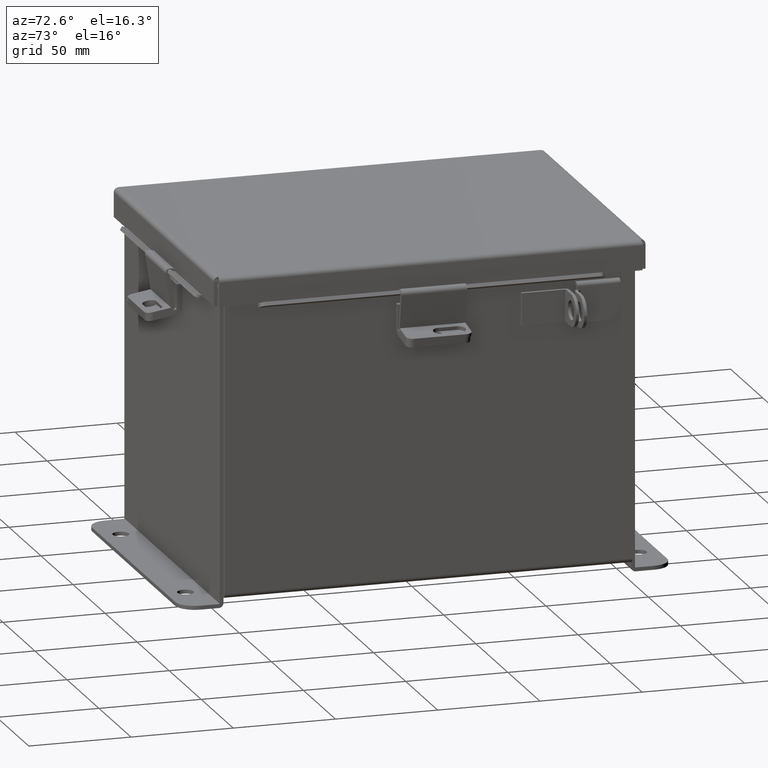
[diagram: clean part render]
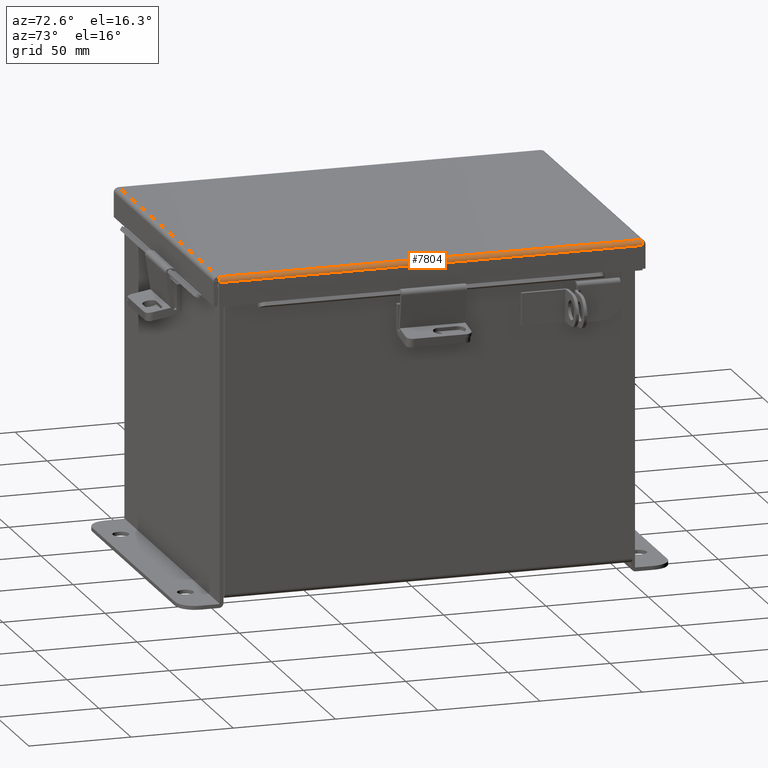
[diagram: same view with one face highlighted and labeled with its STEP entity id]
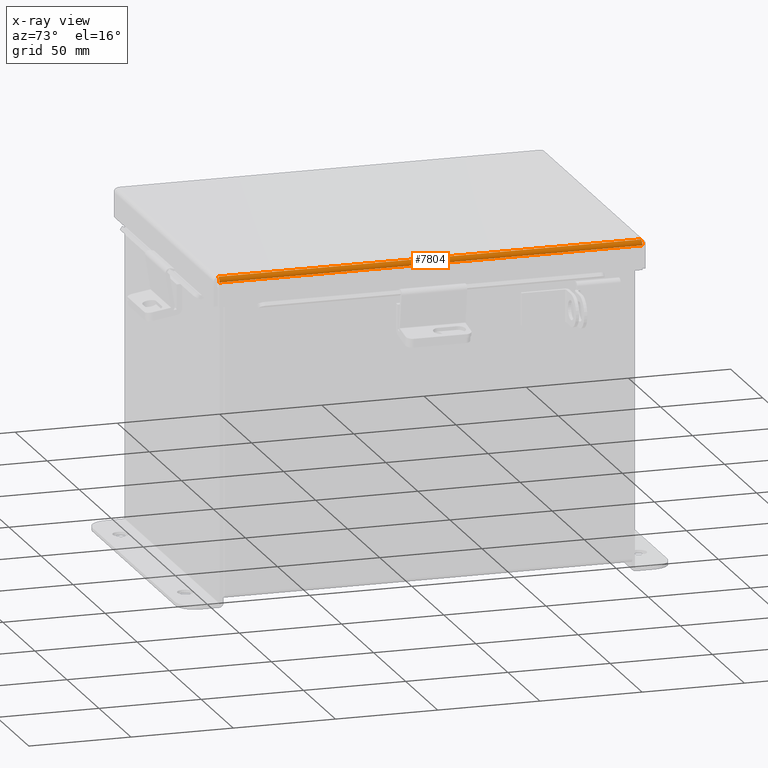
[diagram: x-ray of the same camera — body ghosted, the highlighted face saturated]
A machine part, auxiliary view. The second image highlights one B-rep face of the part: STEP entity #7804.
The next image is the same camera in x-ray: the body ghosted, the highlighted face saturated — about 0% of this face is hidden behind the body in this view.
In plain terms, the highlighted cylindrical surface (edge-blend (fillet) strip) has radius 2.2276 mm, axis along (-0, -1, -0).
Its self-contained STEP definition (entity closure, byte-faithful):
#92 = CARTESIAN_POINT ( 'NONE',  ( -3.080029903154991800, 4.069044077682346700, -0.07469999999999994700 ) ) ;
#146 = CARTESIAN_POINT ( 'NONE',  ( -3.156249999999998700, 4.074478932188136500, 0.01299999999999985900 ) ) ;
#485 = ORIENTED_EDGE ( 'NONE', *, *, #9232, .F. ) ;
#576 = ORIENTED_EDGE ( 'NONE', *, *, #12886, .F. ) ;
#908 = CARTESIAN_POINT ( 'NONE',  ( -3.156249999999998700, -4.074478932188133800, 0.01299999999999986400 ) ) ;
#1275 = CARTESIAN_POINT ( 'NONE',  ( -3.068549999999999200, 4.068550000000001900, -0.07469999999999994700 ) ) ;
#1329 = VERTEX_POINT ( 'NONE', #1670 ) ;
#1527 = EDGE_CURVE ( 'NONE', #11456, #2868, #4982, .T. ) ;
#1670 = CARTESIAN_POINT ( 'NONE',  ( -3.068549999999998800, -4.068549999999999200, -0.07469999999999994700 ) ) ;
#1860 = VECTOR ( 'NONE', #7000, 39.37007874015748100 ) ;
#2263 = B_SPLINE_CURVE_WITH_KNOTS ( 'NONE', 3,
 ( #908, #8020, #11583, #4456, #12790, #5658, #13997, #6873, #15185, #8076 ),
 .UNSPECIFIED., .F., .F.,
 ( 4, 2, 2, 2, 4 ),
 ( 0.0000000000000000000, 0.2500000000000000000, 0.5000000000000000000, 0.7500000000000000000, 1.000000000000000000 ),
 .UNSPECIFIED. ) ;
#2722 = LINE ( 'NONE', #2734, #8279 ) ;
#2734 = CARTESIAN_POINT ( 'NONE',  ( -3.068549999999998800, -4.074478932188133800, -0.07469999999999994700 ) ) ;
#2868 = VERTEX_POINT ( 'NONE', #6908 ) ;
#3071 = EDGE_LOOP ( 'NONE', ( #576, #485, #10476, #7674 ) ) ;
#3631 = CARTESIAN_POINT ( 'NONE',  ( -3.091505289458308200, 4.069538155364691400, -0.07241740374381124000 ) ) ;
#4456 = CARTESIAN_POINT ( 'NONE',  ( -3.145181066258666100, -4.072502621458755600, -0.03116738457852794700 ) ) ;
#4544 = DIRECTION ( 'NONE',  ( 0.0000000000000000000, -1.000000000000000000, 0.0000000000000000000 ) ) ;
#4548 = FACE_OUTER_BOUND ( 'NONE', #3071, .T. ) ;
#4760 = CARTESIAN_POINT ( 'NONE',  ( -3.156249999999998700, -4.074478932188133800, 0.01299999999999986400 ) ) ;
#4812 = CARTESIAN_POINT ( 'NONE',  ( -3.122445747341799000, 4.071020388411724900, -0.05713078207832042500 ) ) ;
#4982 = LINE ( 'NONE', #9123, #1860 ) ;
#5658 = CARTESIAN_POINT ( 'NONE',  ( -3.122445747341797700, -4.071020388411722200, -0.05713078207832041800 ) ) ;
#6012 = CARTESIAN_POINT ( 'NONE',  ( -3.145181066258667400, 4.072502621458758300, -0.03116738457852795100 ) ) ;
#6025 = DIRECTION ( 'NONE',  ( -0.0000000000000000000, 1.000000000000000000, -0.0000000000000000000 ) ) ;
#6873 = CARTESIAN_POINT ( 'NONE',  ( -3.091505289458307300, -4.069538155364687900, -0.07241740374381125400 ) ) ;
#6908 = CARTESIAN_POINT ( 'NONE',  ( -3.156249999999998700, 4.074478932188136500, 0.01299999999999985900 ) ) ;
#6971 = DIRECTION ( 'NONE',  ( -1.000000000000000000, 0.0000000000000000000, -3.358350761880586900E-015 ) ) ;
#7000 = DIRECTION ( 'NONE',  ( -0.0000000000000000000, 1.000000000000000000, -0.0000000000000000000 ) ) ;
#7142 = CARTESIAN_POINT ( 'NONE',  ( -3.068549999999999200, 4.068550000000001900, -0.07469999999999994700 ) ) ;
#7234 = CARTESIAN_POINT ( 'NONE',  ( -3.156249999999999600, 4.073984854505791700, 0.001520096845007165400 ) ) ;
#7274 = VERTEX_POINT ( 'NONE', #7142 ) ;
#7380 = CYLINDRICAL_SURFACE ( 'NONE', #8137, 0.08770000000000026400 ) ;
#7674 = ORIENTED_EDGE ( 'NONE', *, *, #13377, .F. ) ;
#7804 = ADVANCED_FACE ( 'NONE', ( #4548 ), #7380, .T. ) ;
#8020 = CARTESIAN_POINT ( 'NONE',  ( -3.156249999999998700, -4.073984854505789100, 0.001520096845007165000 ) ) ;
#8076 = CARTESIAN_POINT ( 'NONE',  ( -3.068549999999998800, -4.068549999999999200, -0.07469999999999994700 ) ) ;
#8137 = AXIS2_PLACEMENT_3D ( 'NONE', #14083, #4544, #6971 ) ;
#8279 = VECTOR ( 'NONE', #6025, 39.37007874015748100 ) ;
#9123 = CARTESIAN_POINT ( 'NONE',  ( -3.156249999999998700, 4.156250000000001800, 0.01299999999999986400 ) ) ;
#9232 = EDGE_CURVE ( 'NONE', #11456, #1329, #2263, .T. ) ;
#10476 = ORIENTED_EDGE ( 'NONE', *, *, #1527, .T. ) ;
#10822 = B_SPLINE_CURVE_WITH_KNOTS ( 'NONE', 3,
 ( #1275, #92, #3631, #11945, #4812, #13163, #6012, #14350, #7234, #146 ),
 .UNSPECIFIED., .F., .F.,
 ( 4, 2, 2, 2, 4 ),
 ( 0.0000000000000000000, 0.2500000000000000000, 0.5000000000000000000, 0.7500000000000000000, 1.000000000000000000 ),
 .UNSPECIFIED. ) ;
#11456 = VERTEX_POINT ( 'NONE', #4760 ) ;
#11583 = CARTESIAN_POINT ( 'NONE',  ( -3.153967403743811000, -4.073490776823445200, -0.009955289458308987100 ) ) ;
#11945 = CARTESIAN_POINT ( 'NONE',  ( -3.112717384578526800, 4.070526310729379200, -0.06363106625866839200 ) ) ;
#12790 = CARTESIAN_POINT ( 'NONE',  ( -3.138680782078318500, -4.072008543776410900, -0.04089574734180007700 ) ) ;
#12886 = EDGE_CURVE ( 'NONE', #1329, #7274, #2722, .T. ) ;
#13163 = CARTESIAN_POINT ( 'NONE',  ( -3.138680782078319800, 4.072008543776413500, -0.04089574734180008400 ) ) ;
#13377 = EDGE_CURVE ( 'NONE', #7274, #2868, #10822, .T. ) ;
#13997 = CARTESIAN_POINT ( 'NONE',  ( -3.112717384578526300, -4.070526310729377400, -0.06363106625866842000 ) ) ;
#14083 = CARTESIAN_POINT ( 'NONE',  ( -3.068549999999998800, -4.074478932188133800, 0.01300000000000015000 ) ) ;
#14350 = CARTESIAN_POINT ( 'NONE',  ( -3.153967403743810600, 4.073490776823447800, -0.009955289458308985400 ) ) ;
#15185 = CARTESIAN_POINT ( 'NONE',  ( -3.080029903154990900, -4.069044077682344000, -0.07469999999999994700 ) ) ;